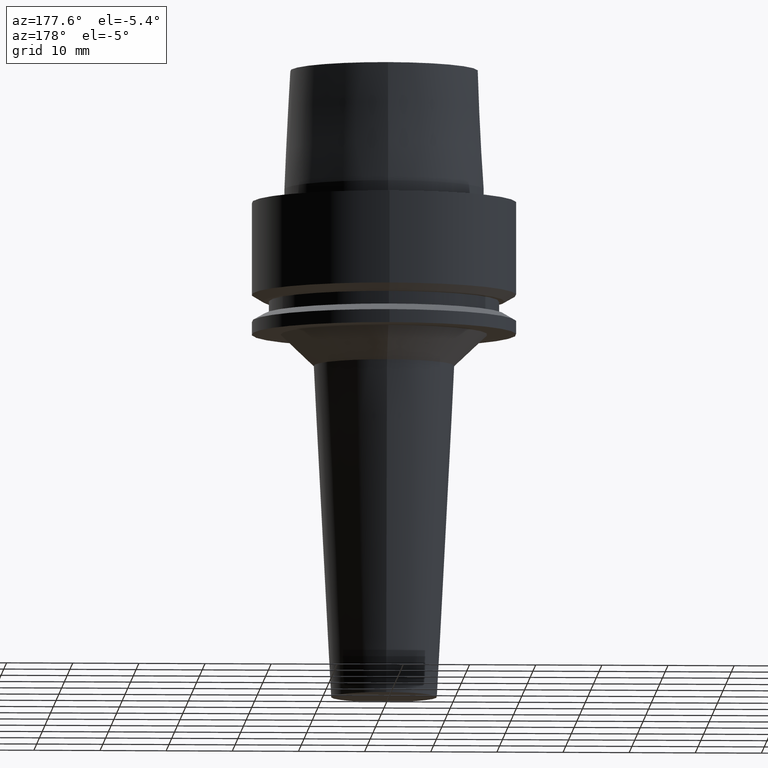
[diagram: clean part render]
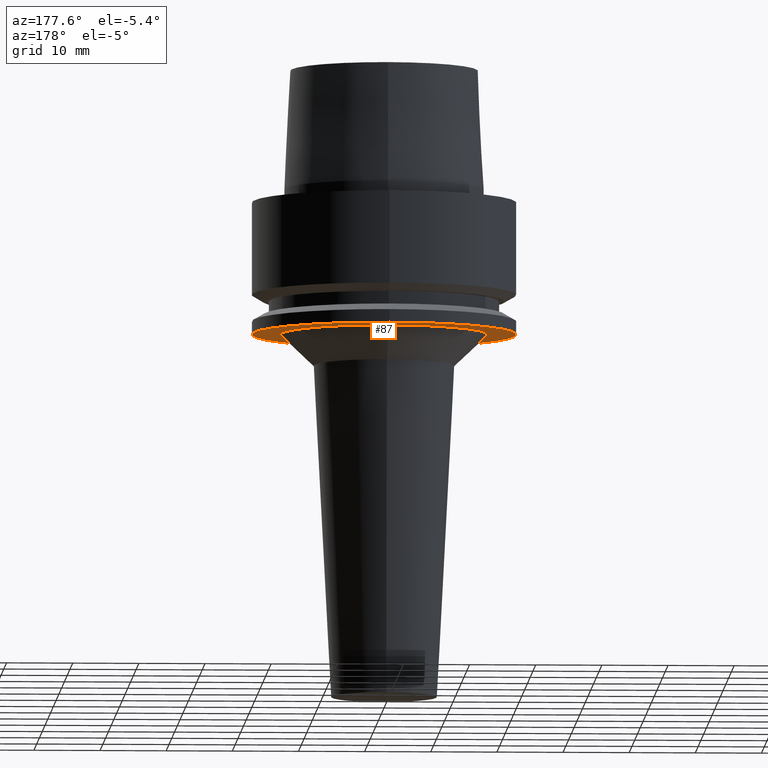
[diagram: same view with one face highlighted and labeled with its STEP entity id]
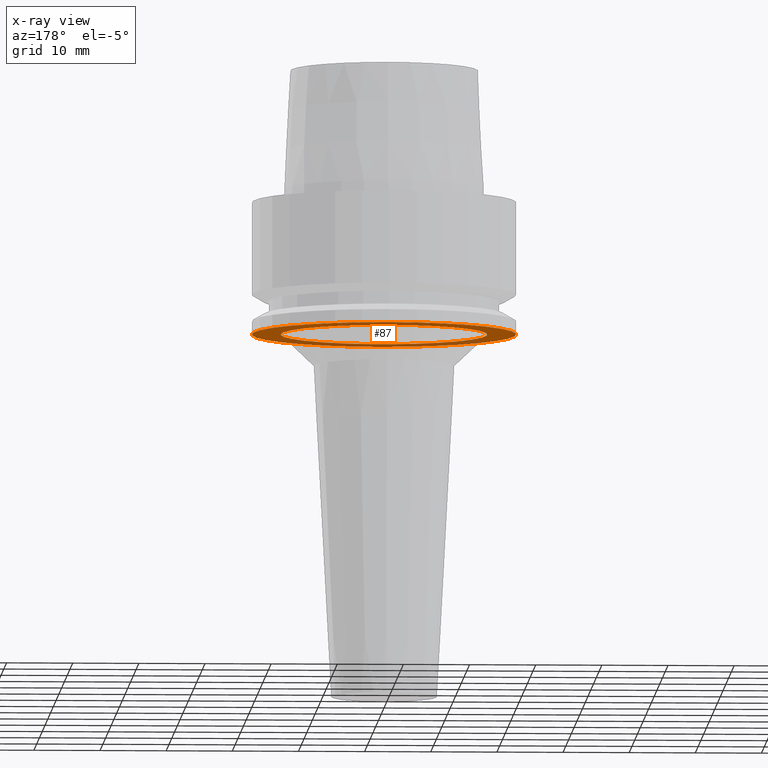
[diagram: x-ray of the same camera — body ghosted, the highlighted face saturated]
A machine part, auxiliary view. The second image highlights one B-rep face of the part: STEP entity #87.
The next image is the same camera in x-ray: the body ghosted, the highlighted face saturated — about 30% of this face is hidden behind the body in this view.
In plain terms, the highlighted planar face has unit normal (0, 0, -1).
Its self-contained STEP definition (entity closure, byte-faithful):
#87=ADVANCED_FACE('',(#125,#126),#127,.T.);
#125=FACE_BOUND('',#168,.T.);
#126=FACE_OUTER_BOUND('',#169,.T.);
#127=PLANE('',#170);
#168=EDGE_LOOP('',(#235));
#169=EDGE_LOOP('',(#236));
#170=AXIS2_PLACEMENT_3D('',#237,#238,#239);
#235=ORIENTED_EDGE('',*,*,#262,.F.);
#236=ORIENTED_EDGE('',*,*,#261,.T.);
#237=CARTESIAN_POINT('',(1.22464679914735E-015,17.813625345,-20.0));
#238=DIRECTION('',(6.12323399573677E-017,1.22464679914735E-016,-1.0));
#239=DIRECTION('',(-1.23259516440783E-032,1.0,1.22464679914735E-016));
#261=EDGE_CURVE('',#286,#286,#287,.T.);
#262=EDGE_CURVE('',#288,#288,#289,.T.);
#286=VERTEX_POINT('',#314);
#287=CIRCLE('',#315,20.0);
#288=VERTEX_POINT('',#316);
#289=CIRCLE('',#317,15.62725069);
#314=CARTESIAN_POINT('',(1.22464679914735E-015,20.0,-20.0));
#315=AXIS2_PLACEMENT_3D('',#353,#354,#355);
#316=CARTESIAN_POINT('',(1.22464679914735E-015,15.62725069,-20.0));
#317=AXIS2_PLACEMENT_3D('',#356,#357,#358);
#353=CARTESIAN_POINT('',(1.22464679914735E-015,2.44929359829471E-015,-20.0));
#354=DIRECTION('',(6.12323399573677E-017,1.22464679914735E-016,-1.0));
#355=DIRECTION('',(-1.23259516440783E-032,1.0,1.22464679914735E-016));
#356=CARTESIAN_POINT('',(1.22464679914735E-015,2.44929359829471E-015,-20.0));
#357=DIRECTION('',(6.12323399573677E-017,1.22464679914735E-016,-1.0));
#358=DIRECTION('',(-1.23259516440783E-032,1.0,1.22464679914735E-016));